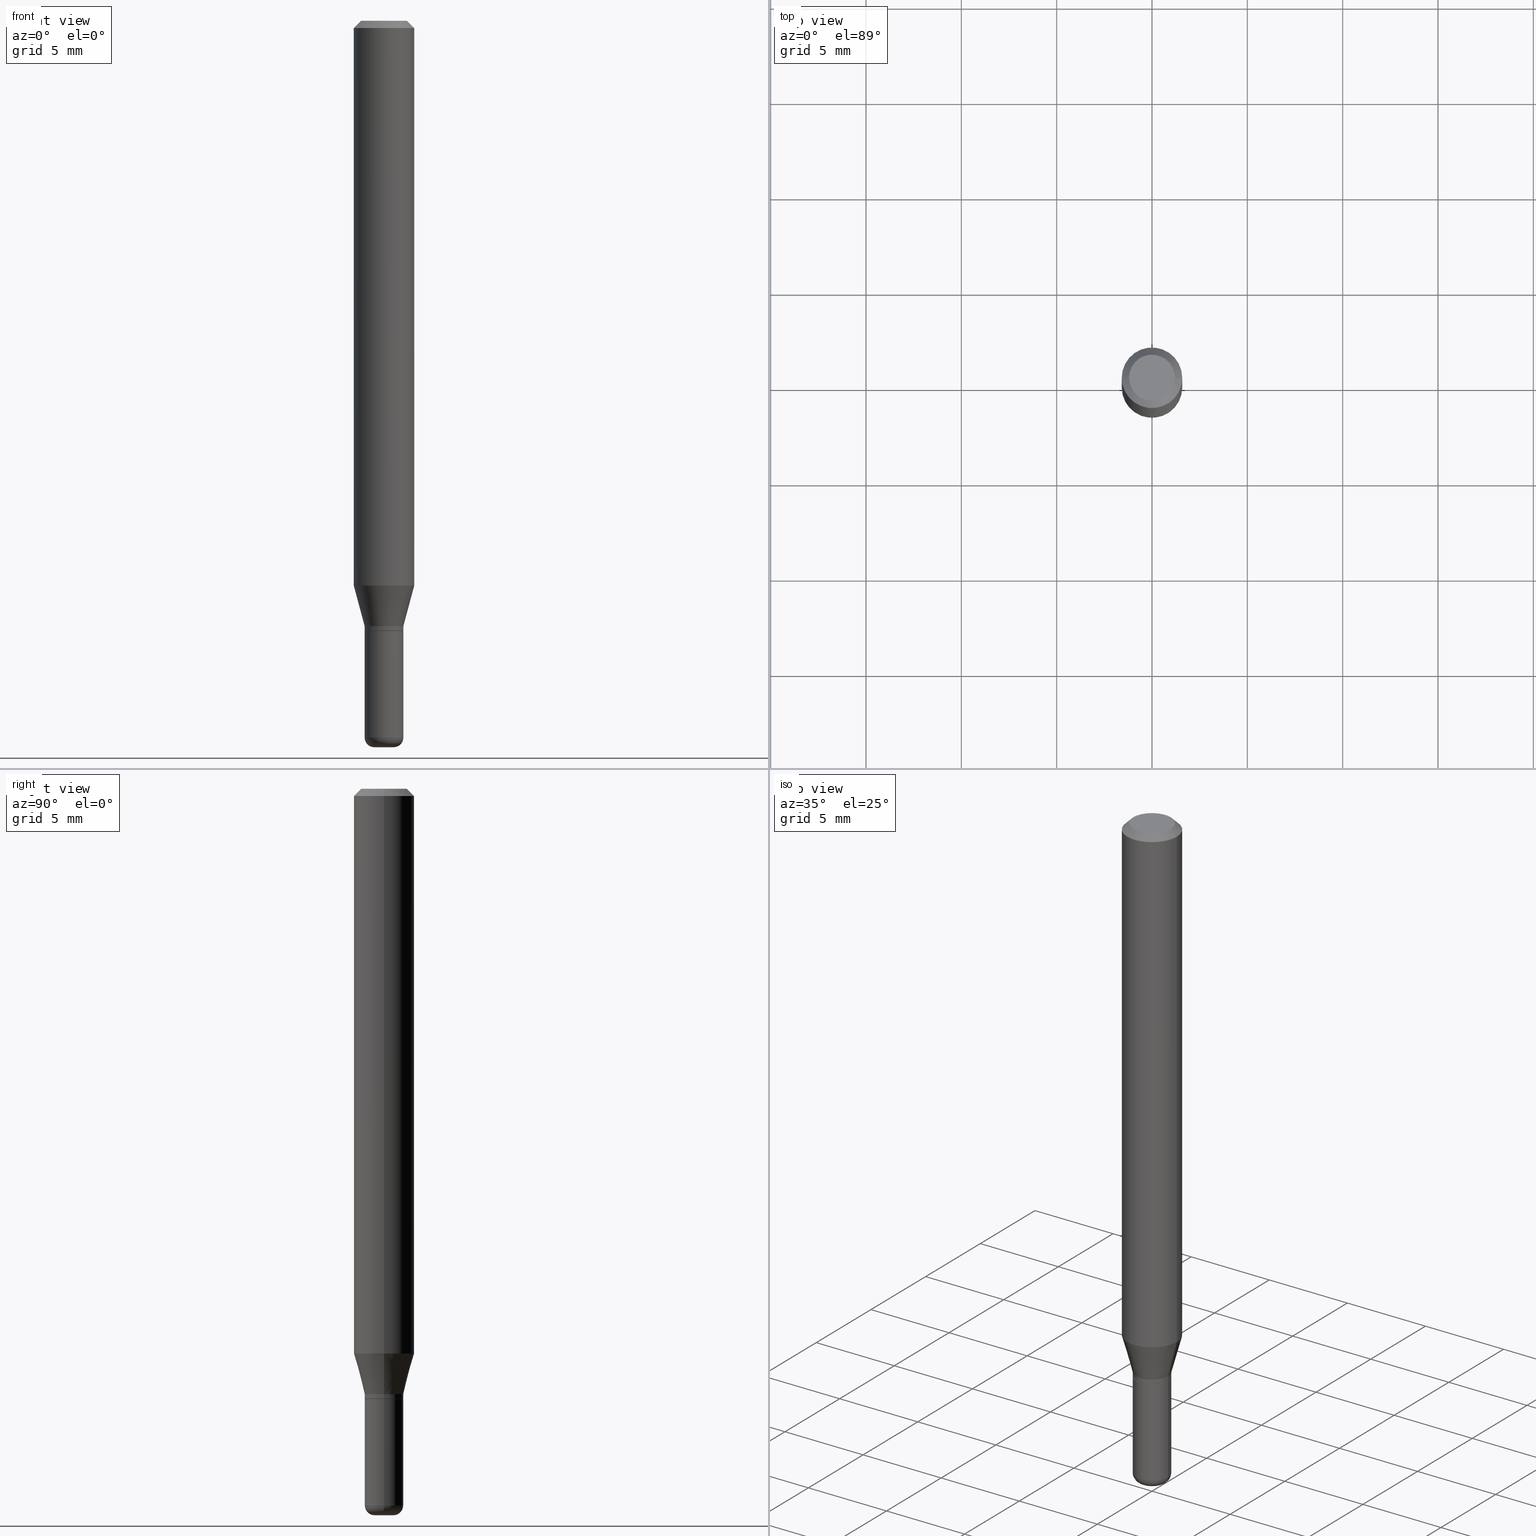
[diagram: canonical four-view strip — front | top / right | iso, engineering-drawing reading convention]
A machine part, canonical four-view strip (front | top / right | iso — engineering-drawing reading convention). The complete STEP part file that produces these views, byte-faithful:
ISO-10303-21;
HEADER;
FILE_DESCRIPTION (( 'STEP AP203' ),
    '1' );
FILE_NAME ('08707.STEP',
    '2024-02-29T20:30:15',
    ( '' ),
    ( '' ),
    'SwSTEP 2.0',
    'SolidWorks 2023',
    '' );
FILE_SCHEMA (( 'CONFIG_CONTROL_DESIGN' ));
ENDSEC;

DATA;
#1 = APPLICATION_CONTEXT ( 'configuration controlled 3d designs of mechanical parts and assemblies' ) ;
#2 = CIRCLE ( 'NONE', #28, 0.04000000000000000083 ) ;
#3 = CC_DESIGN_APPROVAL ( #384, ( #289 ) ) ;
#4 = EDGE_CURVE ( 'NONE', #104, #370, #307, .T. ) ;
#5 = ORIENTED_EDGE ( 'NONE', *, *, #271, .F. ) ;
#6 = CARTESIAN_POINT ( 'NONE',  ( -0.06250000000000000000, -1.617680897278012693E-15, -0.01499999999999970281 ) ) ;
#7 = PERSON_AND_ORGANIZATION ( #34, #426 ) ;
#8 = ORIENTED_EDGE ( 'NONE', *, *, #4, .T. ) ;
#9 = PERSON_AND_ORGANIZATION_ROLE ( 'creator' ) ;
#10 = VECTOR ( 'NONE', #398, 39.37007874015748143 ) ;
#11 = DIRECTION ( 'NONE',  ( -0.7071067811865479058, 2.468850131082261005E-15, -0.7071067811865471286 ) ) ;
#12 = ORIENTED_EDGE ( 'NONE', *, *, #191, .F. ) ;
#13 = CC_DESIGN_DATE_AND_TIME_ASSIGNMENT ( #488, #283, ( #122 ) ) ;
#14 = EDGE_LOOP ( 'NONE', ( #12, #440, #274, #5 ) ) ;
#15 = DIRECTION ( 'NONE',  ( 1.000000000000000000, -6.982962677686266711E-15, 0.000000000000000000 ) ) ;
#16 = CARTESIAN_POINT ( 'NONE',  ( -0.04000000000000000083, -4.080134579249892145E-15, -1.250000000000000000 ) ) ;
#17 = AXIS2_PLACEMENT_3D ( 'NONE', #268, #130, #48 ) ;
#18 = CARTESIAN_POINT ( 'NONE',  ( 0.000000000000000000, 0.000000000000000000, 0.000000000000000000 ) ) ;
#19 = CONICAL_SURFACE ( 'NONE', #54, 0.03950000000000001427, 0.7853981633972775267 ) ;
#20 = DIRECTION ( 'NONE',  ( 1.000000000000000000, -6.982962677686266711E-15, 4.852736867747365086E-29 ) ) ;
#21 = EDGE_CURVE ( 'NONE', #334, #171, #448, .T. ) ;
#22 = CARTESIAN_POINT ( 'NONE',  ( 0.000000000000000000, 0.000000000000000000, 0.000000000000000000 ) ) ;
#23 = ORIENTED_EDGE ( 'NONE', *, *, #503, .T. ) ;
#24 = DIRECTION ( 'NONE',  ( 1.000000000000000000, -6.982962677686257244E-15, 0.000000000000000000 ) ) ;
#25 = DIRECTION ( 'NONE',  ( 1.000000000000000000, -6.982962677686271444E-15, 0.000000000000000000 ) ) ;
#26 = ORIENTED_EDGE ( 'NONE', *, *, #212, .F. ) ;
#27 = CARTESIAN_POINT ( 'NONE',  ( 3.080067961390179490E-29, -4.397520746272941828E-15, -1.259500000000000064 ) ) ;
#28 = AXIS2_PLACEMENT_3D ( 'NONE', #121, #267, #455 ) ;
#29 = AXIS2_PLACEMENT_3D ( 'NONE', #456, #290, #20 ) ;
#30 = DIRECTION ( 'NONE',  ( 1.000000000000000000, -6.982962677686272233E-15, 0.000000000000000000 ) ) ;
#31 = PERSON_AND_ORGANIZATION_ROLE ( 'creator' ) ;
#32 = EDGE_LOOP ( 'NONE', ( #278, #195, #351, #203 ) ) ;
#33 = VECTOR ( 'NONE', #288, 39.37007874015748143 ) ;
#34 = PERSON ( 'UNSPECIFIED', 'UNSPECIFIED', 'UNSPECIFIED', ('UNSPECIFIED'), ('UNSPECIFIED'), ('UNSPECIFIED') ) ;
#35 = CIRCLE ( 'NONE', #146, 0.04000000000000003553 ) ;
#36 = CC_DESIGN_PERSON_AND_ORGANIZATION_ASSIGNMENT ( #362, #9, ( #122 ) ) ;
#37 = CARTESIAN_POINT ( 'NONE',  ( 0.000000000000000000, 0.000000000000000000, 0.000000000000000000 ) ) ;
#38 = CARTESIAN_POINT ( 'NONE',  ( 3.619293833154002365E-29, -5.167392381487854879E-15, -1.479999999999999982 ) ) ;
#39 = ORIENTED_EDGE ( 'NONE', *, *, #305, .F. ) ;
#40 = DIRECTION ( 'NONE',  ( 7.105427357601001859E-15, 1.000000000000000000, -3.491481338843145583E-15 ) ) ;
#41 = DIRECTION ( 'NONE',  ( -2.445468806185136877E-29, 3.491481338843145188E-15, 1.000000000000000000 ) ) ;
#42 = ADVANCED_FACE ( 'NONE', ( #324 ), #326, .T. ) ;
#43 = CIRCLE ( 'NONE', #458, 0.04000000000000003553 ) ;
#44 = LOCAL_TIME ( 15, 30, 15.00000000000000000, #85 ) ;
#45 = DIRECTION ( 'NONE',  ( 2.445468806185136597E-29, -3.491481338843145583E-15, -1.000000000000000000 ) ) ;
#46 = ORIENTED_EDGE ( 'NONE', *, *, #198, .T. ) ;
#47 = DIRECTION ( 'NONE',  ( 1.000000000000000000, -6.982962677686282488E-15, 0.000000000000000000 ) ) ;
#48 = DIRECTION ( 'NONE',  ( 1.000000000000000000, -6.982962677686269077E-15, 0.000000000000000000 ) ) ;
#49 = ORIENTED_EDGE ( 'NONE', *, *, #56, .F. ) ;
#50 = APPROVAL_DATE_TIME ( #163, #152 ) ;
#51 = COORDINATED_UNIVERSAL_TIME_OFFSET ( 5, 0, .BEHIND. ) ;
#52 = DIRECTION ( 'NONE',  ( 1.000000000000000000, -6.982962677686278543E-15, 4.883557194083116264E-29 ) ) ;
#53 = CIRCLE ( 'NONE', #393, 0.06250000000000000000 ) ;
#54 = AXIS2_PLACEMENT_3D ( 'NONE', #118, #112, #417 ) ;
#55 = DESIGN_CONTEXT ( 'detailed design', #1, 'design' ) ;
#56 = EDGE_CURVE ( 'NONE', #86, #63, #164, .T. ) ;
#57 = CARTESIAN_POINT ( 'NONE',  ( 0.06250000000000000000, -4.507603161528897181E-15, -1.166028856829700366 ) ) ;
#58 = CARTESIAN_POINT ( 'NONE',  ( 0.000000000000000000, 0.000000000000000000, 0.000000000000000000 ) ) ;
#59 = COORDINATED_UNIVERSAL_TIME_OFFSET ( 5, 0, .BEHIND. ) ;
#60 = ORIENTED_EDGE ( 'NONE', *, *, #221, .T. ) ;
#61 = DIRECTION ( 'NONE',  ( 1.000000000000000000, -6.982962677686271444E-15, 0.000000000000000000 ) ) ;
#62 = FACE_OUTER_BOUND ( 'NONE', #14, .T. ) ;
#63 = VERTEX_POINT ( 'NONE', #429 ) ;
#64 = LINE ( 'NONE', #150, #67 ) ;
#65 = CARTESIAN_POINT ( 'NONE',  ( 0.03950000000000001427, -4.675093512710971939E-15, -1.260000000000000231 ) ) ;
#66 = CLOSED_SHELL ( 'NONE', ( #42, #179, #427, #250, #518, #149 ) ) ;
#67 = VECTOR ( 'NONE', #264, 39.37007874015748143 ) ;
#68 = DIRECTION ( 'NONE',  ( -2.445468806185136597E-29, 3.491481338843145583E-15, 1.000000000000000000 ) ) ;
#69 = EDGE_LOOP ( 'NONE', ( #327, #459 ) ) ;
#70 = DIRECTION ( 'NONE',  ( -2.445468806185136597E-29, 3.491481338843145583E-15, 1.000000000000000000 ) ) ;
#71 = DIRECTION ( 'NONE',  ( 1.000000000000000000, 0.000000000000000000, 0.000000000000000000 ) ) ;
#72 = CARTESIAN_POINT ( 'NONE',  ( 2.793185071074814439E-16, 0.03999999999999560157, -1.260000000000000453 ) ) ;
#73 = ADVANCED_BREP_SHAPE_REPRESENTATION ( '08707', ( #423, #236, #270 ), #403 ) ;
#74 = FACE_OUTER_BOUND ( 'NONE', #253, .T. ) ;
#75 = AXIS2_PLACEMENT_3D ( 'NONE', #385, #373, #30 ) ;
#76 = CIRCLE ( 'NONE', #349, 0.02000000000000000389 ) ;
#77 = ORIENTED_EDGE ( 'NONE', *, *, #331, .T. ) ;
#78 = ADVANCED_FACE ( 'NONE', ( #155 ), #92, .T. ) ;
#79 = DIRECTION ( 'NONE',  ( -2.445468806185136597E-29, 3.491481338843145583E-15, 1.000000000000000000 ) ) ;
#80 = AXIS2_PLACEMENT_3D ( 'NONE', #72, #325, #298 ) ;
#81 = CIRCLE ( 'NONE', #29, 0.04750000000000000749 ) ;
#82 = DIRECTION ( 'NONE',  ( 1.000000000000000000, -6.982962677686278543E-15, 4.883557194083116264E-29 ) ) ;
#83 = ORIENTED_EDGE ( 'NONE', *, *, #21, .F. ) ;
#84 = APPLICATION_PROTOCOL_DEFINITION ( 'international standard', 'config_control_design', 1994, #1 ) ;
#85 = COORDINATED_UNIVERSAL_TIME_OFFSET ( 5, 0, .BEHIND. ) ;
#86 = VERTEX_POINT ( 'NONE', #193 ) ;
#87 = COORDINATED_UNIVERSAL_TIME_OFFSET ( 5, 0, .BEHIND. ) ;
#88 = CARTESIAN_POINT ( 'NONE',  ( 3.668203209277632395E-31, -5.237222008264614861E-17, -0.01499999999999970281 ) ) ;
#89 = EDGE_LOOP ( 'NONE', ( #320, #166, #432, #49 ) ) ;
#90 = ADVANCED_FACE ( 'NONE', ( #312 ), #391, .F. ) ;
#91 =( CONVERSION_BASED_UNIT ( 'INCH', #284 ) LENGTH_UNIT ( ) NAMED_UNIT ( #505 ) );
#92 = CONICAL_SURFACE ( 'NONE', #151, 0.06250000000000000000, 0.7853981633974488341 ) ;
#93 = EDGE_LOOP ( 'NONE', ( #8, #322, #132, #486 ) ) ;
#94 = VECTOR ( 'NONE', #256, 39.37007874015748143 ) ;
#95 = TOROIDAL_SURFACE ( 'NONE', #365, 0.02000000000000000042, 0.02000000000000003164 ) ;
#96 =( NAMED_UNIT ( * ) PLANE_ANGLE_UNIT ( ) SI_UNIT ( $, .RADIAN. ) );
#97 = CARTESIAN_POINT ( 'NONE',  ( 3.081290695793272291E-29, -4.399266486942364120E-15, -1.260000000000000231 ) ) ;
#98 = ORIENTED_EDGE ( 'NONE', *, *, #350, .F. ) ;
#99 = EDGE_CURVE ( 'NONE', #181, #497, #35, .T. ) ;
#100 = LINE ( 'NONE', #235, #484 ) ;
#101 = ORIENTED_EDGE ( 'NONE', *, *, #422, .F. ) ;
#102 = CARTESIAN_POINT ( 'NONE',  ( -0.04000000000000001471, -4.113303651968902290E-15, -1.259500000000000064 ) ) ;
#103 = DIRECTION ( 'NONE',  ( -2.445468806185136597E-29, 3.491481338843145583E-15, 1.000000000000000000 ) ) ;
#104 = VERTEX_POINT ( 'NONE', #272 ) ;
#105 = APPROVAL_DATE_TIME ( #142, #474 ) ;
#106 = AXIS2_PLACEMENT_3D ( 'NONE', #97, #184, #507 ) ;
#107 = CYLINDRICAL_SURFACE ( 'NONE', #170, 0.06250000000000000000 ) ;
#108 = ORIENTED_EDGE ( 'NONE', *, *, #191, .T. ) ;
#109 = CARTESIAN_POINT ( 'NONE',  ( 3.081290695793272291E-29, -4.399266486942364120E-15, -1.260000000000000231 ) ) ;
#110 = CARTESIAN_POINT ( 'NONE',  ( 0.06250000000000000000, -4.364351673553916694E-16, 3.047610484872459871E-30 ) ) ;
#111 = CARTESIAN_POINT ( 'NONE',  ( 2.851487196488747125E-29, -4.071167994173504722E-15, -1.166028856829700366 ) ) ;
#112 = DIRECTION ( 'NONE',  ( -2.445468806185136597E-29, 3.491481338843145583E-15, 1.000000000000000000 ) ) ;
#113 = CARTESIAN_POINT ( 'NONE',  ( -0.04000000000000001471, 2.842170943040401789E-16, -1.967574036101963210E-30 ) ) ;
#114 = CALENDAR_DATE ( 2024, 29, 2 ) ;
#115 = CARTESIAN_POINT ( 'NONE',  ( 0.000000000000000000, 0.000000000000000000, 0.000000000000000000 ) ) ;
#116 = FACE_OUTER_BOUND ( 'NONE', #280, .T. ) ;
#117 = CARTESIAN_POINT ( 'NONE',  ( 3.056836007731421306E-29, -4.364351673553932471E-15, -1.250000000000000000 ) ) ;
#118 = CARTESIAN_POINT ( 'NONE',  ( 3.081290695793272291E-29, -4.399266486942364120E-15, -1.260000000000000231 ) ) ;
#119 = DIRECTION ( 'NONE',  ( 1.000000000000000000, -6.982962677686277755E-15, 0.000000000000000000 ) ) ;
#120 = ORIENTED_EDGE ( 'NONE', *, *, #21, .T. ) ;
#121 = CARTESIAN_POINT ( 'NONE',  ( 3.081290695793272291E-29, -4.399266486942364120E-15, -1.260000000000000231 ) ) ;
#122 = PRODUCT_DEFINITION ( 'UNKNOWN', '', #386, #55 ) ;
#123 = AXIS2_PLACEMENT_3D ( 'NONE', #517, #40, #476 ) ;
#124 = DIRECTION ( 'NONE',  ( -2.445468806185136597E-29, 3.491481338843145583E-15, 1.000000000000000000 ) ) ;
#125 = EDGE_CURVE ( 'NONE', #370, #181, #475, .T. ) ;
#126 = FACE_OUTER_BOUND ( 'NONE', #394, .T. ) ;
#127 = CONICAL_SURFACE ( 'NONE', #279, 0.04000000000000000083, 0.2617993877991495189 ) ;
#128 = LOCAL_TIME ( 15, 30, 15.00000000000000000, #244 ) ;
#129 = PLANE ( 'NONE',  #247 ) ;
#130 = DIRECTION ( 'NONE',  ( -2.445468806185136597E-29, 3.491481338843145583E-15, 1.000000000000000000 ) ) ;
#131 = CC_DESIGN_DATE_AND_TIME_ASSIGNMENT ( #377, #202, ( #289 ) ) ;
#132 = ORIENTED_EDGE ( 'NONE', *, *, #154, .F. ) ;
#133 = DIRECTION ( 'NONE',  ( 1.000000000000000000, -6.982962677686266711E-15, 4.876176775795936914E-29 ) ) ;
#134 = AXIS2_PLACEMENT_3D ( 'NONE', #115, #214, #147 ) ;
#135 = CIRCLE ( 'NONE', #106, 0.03950000000000001427 ) ;
#136 = ORIENTED_EDGE ( 'NONE', *, *, #4, .F. ) ;
#137 = DIRECTION ( 'NONE',  ( -2.445468806185136597E-29, 3.491481338843145583E-15, 1.000000000000000000 ) ) ;
#138 = APPROVAL_ROLE ( '' ) ;
#139 = ADVANCED_FACE ( 'NONE', ( #228 ), #389, .T. ) ;
#140 = UNCERTAINTY_MEASURE_WITH_UNIT (LENGTH_MEASURE( 1.000000000000000082E-05 ), #91, 'distance_accuracy_value', 'NONE');
#141 = ORIENTED_EDGE ( 'NONE', *, *, #396, .T. ) ;
#142 = DATE_AND_TIME ( #233, #44 ) ;
#143 = DIRECTION ( 'NONE',  ( 1.000000000000000000, -6.982962677686265922E-15, 4.876176775795935793E-29 ) ) ;
#144 = CARTESIAN_POINT ( 'NONE',  ( -0.03950000000000001427, -4.118602106317124692E-15, -1.260000000000000231 ) ) ;
#145 = CARTESIAN_POINT ( 'NONE',  ( 3.056836007731421306E-29, -4.364351673553932471E-15, -1.250000000000000000 ) ) ;
#146 = AXIS2_PLACEMENT_3D ( 'NONE', #38, #124, #471 ) ;
#147 = DIRECTION ( 'NONE',  ( 1.000000000000000000, -6.982962677686266711E-15, 4.876176775795936914E-29 ) ) ;
#148 = DIRECTION ( 'NONE',  ( -2.445468806185136597E-29, 3.491481338843145583E-15, 1.000000000000000000 ) ) ;
#149 = ADVANCED_FACE ( 'NONE', ( #126 ), #129, .F. ) ;
#150 = CARTESIAN_POINT ( 'NONE',  ( 0.06250000000000000000, -4.811533449433669144E-16, -0.01499999999999970281 ) ) ;
#151 = AXIS2_PLACEMENT_3D ( 'NONE', #88, #45, #319 ) ;
#152 = APPROVAL ( #328, 'UNSPECIFIED' ) ;
#153 = SECURITY_CLASSIFICATION_LEVEL ( 'unclassified' ) ;
#154 = EDGE_CURVE ( 'NONE', #497, #181, #43, .T. ) ;
#155 = FACE_OUTER_BOUND ( 'NONE', #176, .T. ) ;
#156 = CC_DESIGN_SECURITY_CLASSIFICATION ( #289, ( #386 ) ) ;
#157 = DIRECTION ( 'NONE',  ( -2.445468806185136877E-29, 3.491481338843145188E-15, 1.000000000000000000 ) ) ;
#158 = CARTESIAN_POINT ( 'NONE',  ( 3.316907271900976589E-16, 0.04750000000000000749, -2.925296391183627249E-17 ) ) ;
#159 = CARTESIAN_POINT ( 'NONE',  ( 3.619293833154002365E-29, -5.167392381487854879E-15, -1.479999999999999982 ) ) ;
#160 = AXIS2_PLACEMENT_3D ( 'NONE', #37, #314, #472 ) ;
#161 = APPROVAL_PERSON_ORGANIZATION ( #442, #474, #433 ) ;
#162 = PRODUCT_RELATED_PRODUCT_CATEGORY ( 'detail', '', ( #339 ) ) ;
#163 = DATE_AND_TIME ( #330, #128 ) ;
#164 = LINE ( 'NONE', #199, #457 ) ;
#165 = VERTEX_POINT ( 'NONE', #418 ) ;
#166 = ORIENTED_EDGE ( 'NONE', *, *, #422, .T. ) ;
#167 = ADVANCED_FACE ( 'NONE', ( #382 ), #428, .F. ) ;
#168 = LINE ( 'NONE', #453, #415 ) ;
#169 = AXIS2_PLACEMENT_3D ( 'NONE', #159, #79, #82 ) ;
#170 = AXIS2_PLACEMENT_3D ( 'NONE', #22, #292, #300 ) ;
#171 = VERTEX_POINT ( 'NONE', #102 ) ;
#172 = APPROVAL_PERSON_ORGANIZATION ( #483, #152, #138 ) ;
#173 = LINE ( 'NONE', #113, #94 ) ;
#174 = ORIENTED_EDGE ( 'NONE', *, *, #212, .T. ) ;
#175 = DIRECTION ( 'NONE',  ( -2.445468806185136877E-29, 3.491481338843145188E-15, 1.000000000000000000 ) ) ;
#176 = EDGE_LOOP ( 'NONE', ( #209, #480, #23, #98 ) ) ;
#177 = DIRECTION ( 'NONE',  ( -0.2588190451025207950, 5.211531920934546309E-15, 0.9659258262890682012 ) ) ;
#178 = ORIENTED_EDGE ( 'NONE', *, *, #311, .T. ) ;
#179 = ADVANCED_FACE ( 'NONE', ( #359 ), #401, .T. ) ;
#180 = CARTESIAN_POINT ( 'NONE',  ( 3.081290695793272291E-29, -4.399266486942364120E-15, -1.260000000000000231 ) ) ;
#181 = VERTEX_POINT ( 'NONE', #407 ) ;
#182 = DIRECTION ( 'NONE',  ( -2.445468806185136597E-29, 3.491481338843145583E-15, 1.000000000000000000 ) ) ;
#183 = CARTESIAN_POINT ( 'NONE',  ( 3.668203209277632395E-31, -5.237222008264614861E-17, -0.01499999999999970281 ) ) ;
#184 = DIRECTION ( 'NONE',  ( -2.445468806185136597E-29, 3.491481338843145583E-15, 1.000000000000000000 ) ) ;
#185 = DIRECTION ( 'NONE',  ( 1.000000000000000000, -6.982962677686262766E-15, 0.000000000000000000 ) ) ;
#186 = AXIS2_PLACEMENT_3D ( 'NONE', #27, #70, #24 ) ;
#187 = CIRCLE ( 'NONE', #275, 0.04000000000000000083 ) ;
#188 = CARTESIAN_POINT ( 'NONE',  ( -0.04000000000000000083, -3.853606681786667125E-15, -1.250000000000000000 ) ) ;
#189 = PERSON_AND_ORGANIZATION ( #34, #426 ) ;
#190 = EDGE_LOOP ( 'NONE', ( #276, #490, #77, #243 ) ) ;
#191 = EDGE_CURVE ( 'NONE', #294, #405, #211, .T. ) ;
#192 = CIRCLE ( 'NONE', #186, 0.04000000000000001471 ) ;
#193 = CARTESIAN_POINT ( 'NONE',  ( 0.04000000000000001471, -4.676839253380393443E-15, -1.259500000000000064 ) ) ;
#194 = CARTESIAN_POINT ( 'NONE',  ( 3.582686580359766038E-29, -5.359686688179453325E-15, -1.500000000000000222 ) ) ;
#195 = ORIENTED_EDGE ( 'NONE', *, *, #354, .T. ) ;
#196 = VECTOR ( 'NONE', #411, 39.37007874015748854 ) ;
#197 = CARTESIAN_POINT ( 'NONE',  ( -0.03950000000000001427, -4.115952879143013491E-15, -1.260000000000000231 ) ) ;
#198 = EDGE_CURVE ( 'NONE', #165, #479, #436, .T. ) ;
#199 = CARTESIAN_POINT ( 'NONE',  ( 0.04000000000000000777, -2.793185071074507276E-16, 1.950470710318374738E-30 ) ) ;
#200 = CC_DESIGN_PERSON_AND_ORGANIZATION_ASSIGNMENT ( #464, #31, ( #386 ) ) ;
#201 = CARTESIAN_POINT ( 'NONE',  ( -6.680649051745406845E-45, 9.538196290434862081E-31, 2.731847993664263218E-16 ) ) ;
#202 = DATE_TIME_ROLE ( 'classification_date' ) ;
#203 = ORIENTED_EDGE ( 'NONE', *, *, #331, .F. ) ;
#204 = AXIS2_PLACEMENT_3D ( 'NONE', #111, #379, #223 ) ;
#205 = CALENDAR_DATE ( 2024, 29, 2 ) ;
#206 = EDGE_LOOP ( 'NONE', ( #178, #439, #315, #366 ) ) ;
#207 = CC_DESIGN_APPROVAL ( #474, ( #386 ) ) ;
#208 = CARTESIAN_POINT ( 'NONE',  ( -0.02000000000000000389, -4.989144374148256283E-15, -1.500000000000000222 ) ) ;
#209 = ORIENTED_EDGE ( 'NONE', *, *, #345, .F. ) ;
#210 = DIRECTION ( 'NONE',  ( -2.445468806185136597E-29, 3.491481338843145583E-15, 1.000000000000000000 ) ) ;
#211 = LINE ( 'NONE', #16, #225 ) ;
#212 = EDGE_CURVE ( 'NONE', #171, #86, #469, .T. ) ;
#213 = VERTEX_POINT ( 'NONE', #6 ) ;
#214 = DIRECTION ( 'NONE',  ( -2.445468806185136597E-29, 3.491481338843145583E-15, 1.000000000000000000 ) ) ;
#215 = CYLINDRICAL_SURFACE ( 'NONE', #302, 0.06250000000000000000 ) ;
#216 = AXIS2_PLACEMENT_3D ( 'NONE', #201, #360, #482 ) ;
#217 = ADVANCED_FACE ( 'NONE', ( #335 ), #352, .T. ) ;
#218 = DIRECTION ( 'NONE',  ( 1.000000000000000000, -6.982962677686265922E-15, 4.876176775795935793E-29 ) ) ;
#219 = DIRECTION ( 'NONE',  ( -2.445468806185136597E-29, 3.491481338843145583E-15, 1.000000000000000000 ) ) ;
#220 = CARTESIAN_POINT ( 'NONE',  ( 0.04000000000000003553, -5.446710888595306494E-15, -1.479999999999999982 ) ) ;
#221 = EDGE_CURVE ( 'NONE', #63, #294, #376, .T. ) ;
#222 = DIRECTION ( 'NONE',  ( -2.445468806185136877E-29, 3.491481338843145188E-15, 1.000000000000000000 ) ) ;
#223 = DIRECTION ( 'NONE',  ( 1.000000000000000000, -6.982962677686262766E-15, 0.000000000000000000 ) ) ;
#224 = FACE_OUTER_BOUND ( 'NONE', #190, .T. ) ;
#225 = VECTOR ( 'NONE', #177, 39.37007874015748854 ) ;
#226 = LOCAL_TIME ( 15, 30, 15.00000000000000000, #51 ) ;
#227 = EDGE_CURVE ( 'NONE', #86, #171, #192, .T. ) ;
#228 = FACE_OUTER_BOUND ( 'NONE', #89, .T. ) ;
#229 = AXIS2_PLACEMENT_3D ( 'NONE', #449, #258, #254 ) ;
#230 = ADVANCED_FACE ( 'NONE', ( #344 ), #445, .T. ) ;
#231 = DIRECTION ( 'NONE',  ( 2.438088387897960049E-29, -3.491481338843145188E-15, -1.000000000000000000 ) ) ;
#232 = ORIENTED_EDGE ( 'NONE', *, *, #271, .T. ) ;
#233 = CALENDAR_DATE ( 2024, 29, 2 ) ;
#234 = ORIENTED_EDGE ( 'NONE', *, *, #311, .F. ) ;
#235 = CARTESIAN_POINT ( 'NONE',  ( 0.04000000000000001471, -2.793185071074507769E-16, 1.950470710318375438E-30 ) ) ;
#236 = MANIFOLD_SOLID_BREP ( 'Body-Move/Copy2[2]', #237 ) ;
#237 = CLOSED_SHELL ( 'NONE', ( #139, #481, #78, #388, #230, #357, #392, #217, #90, #167, #318, #313 ) ) ;
#238 = CIRCLE ( 'NONE', #204, 0.06250000000000000000 ) ;
#239 = EDGE_CURVE ( 'NONE', #479, #165, #2, .T. ) ;
#240 = AXIS2_PLACEMENT_3D ( 'NONE', #183, #341, #255 ) ;
#241 = ORIENTED_EDGE ( 'NONE', *, *, #260, .T. ) ;
#242 = DIRECTION ( 'NONE',  ( 1.000000000000000000, -6.982962677686257244E-15, 0.000000000000000000 ) ) ;
#243 = ORIENTED_EDGE ( 'NONE', *, *, #198, .F. ) ;
#244 = COORDINATED_UNIVERSAL_TIME_OFFSET ( 5, 0, .BEHIND. ) ;
#245 = LINE ( 'NONE', #110, #10 ) ;
#246 = APPROVAL_STATUS ( 'not_yet_approved' ) ;
#247 = AXIS2_PLACEMENT_3D ( 'NONE', #194, #367, #218 ) ;
#248 = EDGE_LOOP ( 'NONE', ( #342, #390, #241, #410 ) ) ;
#249 = CIRCLE ( 'NONE', #240, 0.06250000000000000000 ) ;
#250 = ADVANCED_FACE ( 'NONE', ( #224 ), #381, .T. ) ;
#251 = PERSON_AND_ORGANIZATION_ROLE ( 'design_owner' ) ;
#252 = CARTESIAN_POINT ( 'NONE',  ( -0.06250000000000000000, -3.627078784323442106E-15, -1.166028856829700366 ) ) ;
#253 = EDGE_LOOP ( 'NONE', ( #83, #441, #409, #26 ) ) ;
#254 = DIRECTION ( 'NONE',  ( -1.000000000000000000, 6.982962677686266711E-15, 0.000000000000000000 ) ) ;
#255 = DIRECTION ( 'NONE',  ( 1.000000000000000000, -6.982962677686266711E-15, 0.000000000000000000 ) ) ;
#256 = DIRECTION ( 'NONE',  ( -2.445468806185136877E-29, 3.491481338843145188E-15, 1.000000000000000000 ) ) ;
#257 = ORIENTED_EDGE ( 'NONE', *, *, #273, .F. ) ;
#258 = DIRECTION ( 'NONE',  ( 2.445468806185136597E-29, -3.491481338843145583E-15, -1.000000000000000000 ) ) ;
#259 = CARTESIAN_POINT ( 'NONE',  ( 0.04750000000000000749, -4.035134999187568762E-16, 2.731847993664288856E-16 ) ) ;
#260 = EDGE_CURVE ( 'NONE', #104, #497, #316, .T. ) ;
#261 = AXIS2_PLACEMENT_3D ( 'NONE', #58, #137, #133 ) ;
#262 = DIRECTION ( 'NONE',  ( 1.000000000000000000, -6.982962677686269077E-15, 0.000000000000000000 ) ) ;
#263 = LOCAL_TIME ( 15, 30, 15.00000000000000000, #87 ) ;
#264 = DIRECTION ( 'NONE',  ( 0.7071067811865479058, -7.319954787623257623E-15, -0.7071067811865471286 ) ) ;
#265 = DIRECTION ( 'NONE',  ( -2.445468806185136597E-29, 3.491481338843145583E-15, 1.000000000000000000 ) ) ;
#266 = EDGE_LOOP ( 'NONE', ( #435, #120, #301, #257 ) ) ;
#267 = DIRECTION ( 'NONE',  ( -2.445468806185136597E-29, 3.491481338843145583E-15, 1.000000000000000000 ) ) ;
#268 = CARTESIAN_POINT ( 'NONE',  ( 3.081290695793272291E-29, -4.399266486942364120E-15, -1.260000000000000231 ) ) ;
#269 = AXIS2_PLACEMENT_3D ( 'NONE', #495, #291, #450 ) ;
#270 = AXIS2_PLACEMENT_3D ( 'NONE', #465, #419, #71 ) ;
#271 = EDGE_CURVE ( 'NONE', #405, #361, #238, .T. ) ;
#272 = CARTESIAN_POINT ( 'NONE',  ( 0.02000000000000000389, -5.376881261818443984E-15, -1.500000000000000222 ) ) ;
#273 = EDGE_CURVE ( 'NONE', #473, #86, #498, .T. ) ;
#274 = ORIENTED_EDGE ( 'NONE', *, *, #304, .T. ) ;
#275 = AXIS2_PLACEMENT_3D ( 'NONE', #145, #148, #25 ) ;
#276 = ORIENTED_EDGE ( 'NONE', *, *, #354, .F. ) ;
#277 = ORIENTED_EDGE ( 'NONE', *, *, #438, .F. ) ;
#278 = ORIENTED_EDGE ( 'NONE', *, *, #154, .T. ) ;
#279 = AXIS2_PLACEMENT_3D ( 'NONE', #371, #103, #414 ) ;
#280 = EDGE_LOOP ( 'NONE', ( #487, #46 ) ) ;
#281 = APPROVAL_STATUS ( 'not_yet_approved' ) ;
#282 = ORIENTED_EDGE ( 'NONE', *, *, #454, .F. ) ;
#283 = DATE_TIME_ROLE ( 'creation_date' ) ;
#284 = LENGTH_MEASURE_WITH_UNIT ( LENGTH_MEASURE( 0.02539999999999999897 ), #374 );
#285 = VERTEX_POINT ( 'NONE', #460 ) ;
#286 = PERSON_AND_ORGANIZATION ( #34, #426 ) ;
#287 = AXIS2_PLACEMENT_3D ( 'NONE', #117, #512, #61 ) ;
#288 = DIRECTION ( 'NONE',  ( -0.7071067811864267805, 7.493145998869918709E-15, 0.7071067811866682540 ) ) ;
#289 = SECURITY_CLASSIFICATION ( '', '', #153 ) ;
#290 = DIRECTION ( 'NONE',  ( -2.445468806185136597E-29, 3.491481338843145583E-15, 1.000000000000000000 ) ) ;
#291 = DIRECTION ( 'NONE',  ( -2.445468806185136597E-29, 3.491481338843145583E-15, 1.000000000000000000 ) ) ;
#292 = DIRECTION ( 'NONE',  ( -2.445468806185136597E-29, 3.491481338843145583E-15, 1.000000000000000000 ) ) ;
#293 = APPROVAL_ROLE ( '' ) ;
#294 = VERTEX_POINT ( 'NONE', #188 ) ;
#295 = DIRECTION ( 'NONE',  ( 0.7071067811864267805, -2.468850131080992517E-15, 0.7071067811866682540 ) ) ;
#296 = CC_DESIGN_PERSON_AND_ORGANIZATION_ASSIGNMENT ( #286, #251, ( #339 ) ) ;
#297 = EDGE_LOOP ( 'NONE', ( #60, #108, #234, #347 ) ) ;
#298 = DIRECTION ( 'NONE',  ( -1.000000000000000000, 6.982962677686265922E-15, -4.876176775795935793E-29 ) ) ;
#299 = CARTESIAN_POINT ( 'NONE',  ( -0.04750000000000000749, 3.578768372314221353E-16, 2.731847993664239060E-16 ) ) ;
#300 = DIRECTION ( 'NONE',  ( 1.000000000000000000, -6.982962677686266711E-15, 4.876176775795935793E-29 ) ) ;
#301 = ORIENTED_EDGE ( 'NONE', *, *, #227, .F. ) ;
#302 = AXIS2_PLACEMENT_3D ( 'NONE', #18, #68, #446 ) ;
#303 = EDGE_LOOP ( 'NONE', ( #101, #174, #353, #372 ) ) ;
#304 = EDGE_CURVE ( 'NONE', #63, #361, #383, .T. ) ;
#305 = EDGE_CURVE ( 'NONE', #378, #285, #64, .T. ) ;
#306 = PERSON_AND_ORGANIZATION ( #34, #426 ) ;
#307 = CIRCLE ( 'NONE', #400, 0.02000000000000000389 ) ;
#308 = CIRCLE ( 'NONE', #216, 0.04750000000000000749 ) ;
#309 = APPROVAL_PERSON_ORGANIZATION ( #7, #384, #293 ) ;
#310 = DIRECTION ( 'NONE',  ( -1.000000000000000000, 6.982962677686265922E-15, -4.876176775795935793E-29 ) ) ;
#311 = EDGE_CURVE ( 'NONE', #361, #405, #53, .T. ) ;
#312 = FACE_OUTER_BOUND ( 'NONE', #69, .T. ) ;
#313 = ADVANCED_FACE ( 'NONE', ( #338 ), #501, .T. ) ;
#314 = DIRECTION ( 'NONE',  ( -2.445468806185136597E-29, 3.491481338843145583E-15, 1.000000000000000000 ) ) ;
#315 = ORIENTED_EDGE ( 'NONE', *, *, #503, .F. ) ;
#316 = CIRCLE ( 'NONE', #75, 0.02000000000000003511 ) ;
#317 = CIRCLE ( 'NONE', #416, 0.06250000000000000000 ) ;
#318 = ADVANCED_FACE ( 'NONE', ( #74 ), #375, .T. ) ;
#319 = DIRECTION ( 'NONE',  ( -1.000000000000000000, 6.982962677686266711E-15, 0.000000000000000000 ) ) ;
#320 = ORIENTED_EDGE ( 'NONE', *, *, #227, .T. ) ;
#321 = CARTESIAN_POINT ( 'NONE',  ( 3.668203209277704895E-29, -5.237222008264718177E-15, -1.500000000000000222 ) ) ;
#322 = ORIENTED_EDGE ( 'NONE', *, *, #125, .T. ) ;
#323 = DIRECTION ( 'NONE',  ( -2.445468806185136597E-29, 3.491481338843145583E-15, 1.000000000000000000 ) ) ;
#324 = FACE_OUTER_BOUND ( 'NONE', #93, .T. ) ;
#325 = DIRECTION ( 'NONE',  ( 2.438088387897960049E-29, -3.491481338843145188E-15, -1.000000000000000000 ) ) ;
#326 = TOROIDAL_SURFACE ( 'NONE', #169, 0.02000000000000000042, 0.02000000000000003164 ) ;
#327 = ORIENTED_EDGE ( 'NONE', *, *, #491, .T. ) ;
#328 = APPROVAL_STATUS ( 'not_yet_approved' ) ;
#329 = ORIENTED_EDGE ( 'NONE', *, *, #515, .F. ) ;
#330 = CALENDAR_DATE ( 2024, 29, 2 ) ;
#331 = EDGE_CURVE ( 'NONE', #497, #479, #100, .T. ) ;
#332 = CARTESIAN_POINT ( 'NONE',  ( 3.668203209277632395E-31, -5.237222008264614861E-17, -0.01499999999999970281 ) ) ;
#333 = DIRECTION ( 'NONE',  ( -2.445468806185136597E-29, 3.491481338843145583E-15, 1.000000000000000000 ) ) ;
#334 = VERTEX_POINT ( 'NONE', #197 ) ;
#335 = FACE_OUTER_BOUND ( 'NONE', #387, .T. ) ;
#336 = DIRECTION ( 'NONE',  ( -2.445468806185136597E-29, 3.491481338843145583E-15, 1.000000000000000000 ) ) ;
#337 = ORIENTED_EDGE ( 'NONE', *, *, #350, .T. ) ;
#338 = FACE_OUTER_BOUND ( 'NONE', #303, .T. ) ;
#339 = PRODUCT ( '08707', '08707', '', ( #413 ) ) ;
#340 = CARTESIAN_POINT ( 'NONE',  ( 3.056836007731421306E-29, -4.364351673553932471E-15, -1.250000000000000000 ) ) ;
#341 = DIRECTION ( 'NONE',  ( -2.445468806185136597E-29, 3.491481338843145583E-15, 1.000000000000000000 ) ) ;
#342 = ORIENTED_EDGE ( 'NONE', *, *, #125, .F. ) ;
#343 = CARTESIAN_POINT ( 'NONE',  ( 0.000000000000000000, 0.000000000000000000, 0.000000000000000000 ) ) ;
#344 = FACE_OUTER_BOUND ( 'NONE', #297, .T. ) ;
#345 = EDGE_CURVE ( 'NONE', #378, #500, #308, .T. ) ;
#346 = PERSON_AND_ORGANIZATION_ROLE ( 'design_supplier' ) ;
#347 = ORIENTED_EDGE ( 'NONE', *, *, #304, .F. ) ;
#348 = VECTOR ( 'NONE', #222, 39.37007874015748143 ) ;
#349 = AXIS2_PLACEMENT_3D ( 'NONE', #510, #397, #47 ) ;
#350 = EDGE_CURVE ( 'NONE', #500, #213, #168, .T. ) ;
#351 = ORIENTED_EDGE ( 'NONE', *, *, #239, .F. ) ;
#352 = CONICAL_SURFACE ( 'NONE', #229, 0.06250000000000000000, 0.7853981633974488341 ) ;
#353 = ORIENTED_EDGE ( 'NONE', *, *, #56, .T. ) ;
#354 = EDGE_CURVE ( 'NONE', #181, #165, #173, .T. ) ;
#355 = CARTESIAN_POINT ( 'NONE',  ( 3.080067961390179490E-29, -4.397520746272941828E-15, -1.259500000000000064 ) ) ;
#356 = ORIENTED_EDGE ( 'NONE', *, *, #491, .F. ) ;
#357 = ADVANCED_FACE ( 'NONE', ( #62 ), #127, .T. ) ;
#358 = ORIENTED_EDGE ( 'NONE', *, *, #515, .T. ) ;
#359 = FACE_OUTER_BOUND ( 'NONE', #32, .T. ) ;
#360 = DIRECTION ( 'NONE',  ( -2.445468806185136597E-29, 3.491481338843145583E-15, 1.000000000000000000 ) ) ;
#361 = VERTEX_POINT ( 'NONE', #57 ) ;
#362 = PERSON_AND_ORGANIZATION ( #34, #426 ) ;
#363 = CC_DESIGN_PERSON_AND_ORGANIZATION_ASSIGNMENT ( #306, #468, ( #289 ) ) ;
#364 = AXIS2_PLACEMENT_3D ( 'NONE', #340, #219, #466 ) ;
#365 = AXIS2_PLACEMENT_3D ( 'NONE', #462, #265, #52 ) ;
#366 = ORIENTED_EDGE ( 'NONE', *, *, #396, .F. ) ;
#367 = DIRECTION ( 'NONE',  ( -2.438088387897960049E-29, 3.491481338843145188E-15, 1.000000000000000000 ) ) ;
#368 = DIRECTION ( 'NONE',  ( -2.438088387897960049E-29, 3.491481338843145188E-15, 1.000000000000000000 ) ) ;
#369 = FACE_OUTER_BOUND ( 'NONE', #206, .T. ) ;
#370 = VERTEX_POINT ( 'NONE', #208 ) ;
#371 = CARTESIAN_POINT ( 'NONE',  ( 3.056836007731421306E-29, -4.364351673553932471E-15, -1.250000000000000000 ) ) ;
#372 = ORIENTED_EDGE ( 'NONE', *, *, #513, .F. ) ;
#373 = DIRECTION ( 'NONE',  ( -6.982962677686266711E-15, -1.000000000000000000, 3.491481338843145583E-15 ) ) ;
#374 =( LENGTH_UNIT ( ) NAMED_UNIT ( * ) SI_UNIT ( $, .METRE. ) );
#375 = CONICAL_SURFACE ( 'NONE', #17, 0.03950000000000001427, 0.7853981633972775267 ) ;
#376 = CIRCLE ( 'NONE', #364, 0.04000000000000000083 ) ;
#377 = DATE_AND_TIME ( #114, #516 ) ;
#378 = VERTEX_POINT ( 'NONE', #259 ) ;
#379 = DIRECTION ( 'NONE',  ( -2.445468806185136597E-29, 3.491481338843145583E-15, 1.000000000000000000 ) ) ;
#380 = FACE_OUTER_BOUND ( 'NONE', #477, .T. ) ;
#381 = CYLINDRICAL_SURFACE ( 'NONE', #134, 0.04000000000000001471 ) ;
#382 = FACE_OUTER_BOUND ( 'NONE', #514, .T. ) ;
#383 = LINE ( 'NONE', #452, #196 ) ;
#384 = APPROVAL ( #281, 'UNSPECIFIED' ) ;
#385 = CARTESIAN_POINT ( 'NONE',  ( 0.02000000000000000042, -5.307051635041580686E-15, -1.479999999999999982 ) ) ;
#386 = PRODUCT_DEFINITION_FORMATION_WITH_SPECIFIED_SOURCE ( 'ANY', '', #339, .NOT_KNOWN. ) ;
#387 = EDGE_LOOP ( 'NONE', ( #39, #356, #337, #358 ) ) ;
#388 = ADVANCED_FACE ( 'NONE', ( #369 ), #215, .T. ) ;
#389 = CYLINDRICAL_SURFACE ( 'NONE', #160, 0.04000000000000000777 ) ;
#390 = ORIENTED_EDGE ( 'NONE', *, *, #434, .T. ) ;
#391 = PLANE ( 'NONE',  #430 ) ;
#392 = ADVANCED_FACE ( 'NONE', ( #380 ), #107, .T. ) ;
#393 = AXIS2_PLACEMENT_3D ( 'NONE', #421, #182, #185 ) ;
#394 = EDGE_LOOP ( 'NONE', ( #136, #478 ) ) ;
#395 =( NAMED_UNIT ( * ) SI_UNIT ( $, .STERADIAN. ) SOLID_ANGLE_UNIT ( ) );
#396 = EDGE_CURVE ( 'NONE', #361, #285, #245, .T. ) ;
#397 = DIRECTION ( 'NONE',  ( -2.445468806185136597E-29, 3.491481338843145583E-15, 1.000000000000000000 ) ) ;
#398 = DIRECTION ( 'NONE',  ( -2.445468806185136877E-29, 3.491481338843145188E-15, 1.000000000000000000 ) ) ;
#399 = ORIENTED_EDGE ( 'NONE', *, *, #494, .F. ) ;
#400 = AXIS2_PLACEMENT_3D ( 'NONE', #321, #333, #493 ) ;
#401 = CYLINDRICAL_SURFACE ( 'NONE', #261, 0.04000000000000001471 ) ;
#402 = AXIS2_PLACEMENT_3D ( 'NONE', #109, #368, #143 ) ;
#403 =( GEOMETRIC_REPRESENTATION_CONTEXT ( 3 ) GLOBAL_UNCERTAINTY_ASSIGNED_CONTEXT ( ( #140 ) ) GLOBAL_UNIT_ASSIGNED_CONTEXT ( ( #91, #96, #395 ) ) REPRESENTATION_CONTEXT ( 'NONE', 'WORKASPACE' ) );
#404 = SHAPE_DEFINITION_REPRESENTATION ( #444, #73 ) ;
#405 = VERTEX_POINT ( 'NONE', #252 ) ;
#406 = CARTESIAN_POINT ( 'NONE',  ( -0.06250000000000000000, 4.440892098500626162E-16, -3.074334431409316114E-30 ) ) ;
#407 = CARTESIAN_POINT ( 'NONE',  ( -0.04000000000000003553, -4.499112339911069567E-15, -1.479999999999999982 ) ) ;
#408 = LINE ( 'NONE', #451, #348 ) ;
#409 = ORIENTED_EDGE ( 'NONE', *, *, #273, .T. ) ;
#410 = ORIENTED_EDGE ( 'NONE', *, *, #99, .F. ) ;
#411 = DIRECTION ( 'NONE',  ( 0.2588190451025207950, 1.565188264969625912E-15, 0.9659258262890682012 ) ) ;
#412 = APPLICATION_CONTEXT ( 'configuration controlled 3d designs of mechanical parts and assemblies' ) ;
#413 = MECHANICAL_CONTEXT ( 'NONE', #412, 'mechanical' ) ;
#414 = DIRECTION ( 'NONE',  ( 1.000000000000000000, -6.982962677686271444E-15, 0.000000000000000000 ) ) ;
#415 = VECTOR ( 'NONE', #11, 39.37007874015748143 ) ;
#416 = AXIS2_PLACEMENT_3D ( 'NONE', #332, #210, #15 ) ;
#417 = DIRECTION ( 'NONE',  ( 1.000000000000000000, -6.982962677686269077E-15, 0.000000000000000000 ) ) ;
#418 = CARTESIAN_POINT ( 'NONE',  ( -0.04000000000000000083, -4.499112339911069567E-15, -1.260000000000000231 ) ) ;
#419 = DIRECTION ( 'NONE',  ( 0.000000000000000000, 0.000000000000000000, 1.000000000000000000 ) ) ;
#420 = PLANE ( 'NONE',  #80 ) ;
#421 = CARTESIAN_POINT ( 'NONE',  ( 2.851487196488747125E-29, -4.071167994173504722E-15, -1.166028856829700366 ) ) ;
#422 = EDGE_CURVE ( 'NONE', #171, #294, #408, .T. ) ;
#423 = MANIFOLD_SOLID_BREP ( 'Body-Move/Copy2[1]', #66 ) ;
#424 = DIRECTION ( 'NONE',  ( 1.000000000000000000, -6.982962677686266711E-15, 4.876176775795935793E-29 ) ) ;
#425 = VECTOR ( 'NONE', #295, 39.37007874015748143 ) ;
#426 = ORGANIZATION ( 'UNSPECIFIED', 'UNSPECIFIED', '' ) ;
#427 = ADVANCED_FACE ( 'NONE', ( #116 ), #420, .F. ) ;
#428 = PLANE ( 'NONE',  #402 ) ;
#429 = CARTESIAN_POINT ( 'NONE',  ( 0.04000000000000000083, -4.643670180661383298E-15, -1.250000000000000000 ) ) ;
#430 = AXIS2_PLACEMENT_3D ( 'NONE', #158, #231, #310 ) ;
#431 = AXIS2_PLACEMENT_3D ( 'NONE', #180, #336, #262 ) ;
#432 = ORIENTED_EDGE ( 'NONE', *, *, #221, .F. ) ;
#433 = APPROVAL_ROLE ( '' ) ;
#434 = EDGE_CURVE ( 'NONE', #370, #104, #76, .T. ) ;
#435 = ORIENTED_EDGE ( 'NONE', *, *, #454, .T. ) ;
#436 = CIRCLE ( 'NONE', #269, 0.04000000000000000083 ) ;
#437 = CIRCLE ( 'NONE', #431, 0.03950000000000001427 ) ;
#438 = EDGE_CURVE ( 'NONE', #334, #473, #135, .T. ) ;
#439 = ORIENTED_EDGE ( 'NONE', *, *, #494, .T. ) ;
#440 = ORIENTED_EDGE ( 'NONE', *, *, #513, .T. ) ;
#441 = ORIENTED_EDGE ( 'NONE', *, *, #438, .T. ) ;
#442 = PERSON_AND_ORGANIZATION ( #34, #426 ) ;
#443 = APPROVAL_DATE_TIME ( #489, #384 ) ;
#444 = PRODUCT_DEFINITION_SHAPE ( 'NONE', 'NONE',  #122 ) ;
#445 = CONICAL_SURFACE ( 'NONE', #287, 0.04000000000000000083, 0.2617993877991495189 ) ;
#446 = DIRECTION ( 'NONE',  ( 1.000000000000000000, -6.982962677686266711E-15, 4.876176775795935793E-29 ) ) ;
#447 = VECTOR ( 'NONE', #175, 39.37007874015748143 ) ;
#448 = LINE ( 'NONE', #144, #33 ) ;
#449 = CARTESIAN_POINT ( 'NONE',  ( 3.668203209277632395E-31, -5.237222008264614861E-17, -0.01499999999999970281 ) ) ;
#450 = DIRECTION ( 'NONE',  ( 1.000000000000000000, -6.982962677686259611E-15, 0.000000000000000000 ) ) ;
#451 = CARTESIAN_POINT ( 'NONE',  ( -0.04000000000000000777, 2.842170943040401296E-16, -1.967574036101962859E-30 ) ) ;
#452 = CARTESIAN_POINT ( 'NONE',  ( 0.04000000000000000083, -4.643670180661383298E-15, -1.250000000000000000 ) ) ;
#453 = CARTESIAN_POINT ( 'NONE',  ( -0.06250000000000000000, 3.840629472727455270E-16, -0.01499999999999970281 ) ) ;
#454 = EDGE_CURVE ( 'NONE', #473, #334, #437, .T. ) ;
#455 = DIRECTION ( 'NONE',  ( 1.000000000000000000, -6.982962677686259611E-15, 0.000000000000000000 ) ) ;
#456 = CARTESIAN_POINT ( 'NONE',  ( -6.680649051745406845E-45, 9.538196290434862081E-31, 2.731847993664263218E-16 ) ) ;
#457 = VECTOR ( 'NONE', #157, 39.37007874015748143 ) ;
#458 = AXIS2_PLACEMENT_3D ( 'NONE', #467, #463, #119 ) ;
#459 = ORIENTED_EDGE ( 'NONE', *, *, #345, .T. ) ;
#460 = CARTESIAN_POINT ( 'NONE',  ( 0.06250000000000000000, -4.888073874380378612E-16, -0.01499999999999970281 ) ) ;
#461 = CC_DESIGN_PERSON_AND_ORGANIZATION_ASSIGNMENT ( #189, #346, ( #386 ) ) ;
#462 = CARTESIAN_POINT ( 'NONE',  ( 3.619293833154002365E-29, -5.167392381487854879E-15, -1.479999999999999982 ) ) ;
#463 = DIRECTION ( 'NONE',  ( -2.445468806185136597E-29, 3.491481338843145583E-15, 1.000000000000000000 ) ) ;
#464 = PERSON_AND_ORGANIZATION ( #34, #426 ) ;
#465 = CARTESIAN_POINT ( 'NONE',  ( 0.000000000000000000, 0.000000000000000000, 0.000000000000000000 ) ) ;
#466 = DIRECTION ( 'NONE',  ( 1.000000000000000000, -6.982962677686271444E-15, 0.000000000000000000 ) ) ;
#467 = CARTESIAN_POINT ( 'NONE',  ( 3.619293833154002365E-29, -5.167392381487854879E-15, -1.479999999999999982 ) ) ;
#468 = PERSON_AND_ORGANIZATION_ROLE ( 'classification_officer' ) ;
#469 = CIRCLE ( 'NONE', #508, 0.04000000000000001471 ) ;
#470 = CALENDAR_DATE ( 2024, 29, 2 ) ;
#471 = DIRECTION ( 'NONE',  ( 1.000000000000000000, -6.982962677686277755E-15, 0.000000000000000000 ) ) ;
#472 = DIRECTION ( 'NONE',  ( 1.000000000000000000, -6.982962677686266711E-15, 4.876176775795935793E-29 ) ) ;
#473 = VERTEX_POINT ( 'NONE', #65 ) ;
#474 = APPROVAL ( #246, 'UNSPECIFIED' ) ;
#475 = CIRCLE ( 'NONE', #123, 0.02000000000000003511 ) ;
#476 = DIRECTION ( 'NONE',  ( -1.000000000000000000, 7.105427357601009747E-15, 0.000000000000000000 ) ) ;
#477 = EDGE_LOOP ( 'NONE', ( #399, #232, #141, #329 ) ) ;
#478 = ORIENTED_EDGE ( 'NONE', *, *, #434, .F. ) ;
#479 = VERTEX_POINT ( 'NONE', #492 ) ;
#480 = ORIENTED_EDGE ( 'NONE', *, *, #305, .T. ) ;
#481 = ADVANCED_FACE ( 'NONE', ( #499 ), #19, .T. ) ;
#482 = DIRECTION ( 'NONE',  ( 1.000000000000000000, -6.982962677686266711E-15, 4.852736867747365086E-29 ) ) ;
#483 = PERSON_AND_ORGANIZATION ( #34, #426 ) ;
#484 = VECTOR ( 'NONE', #41, 39.37007874015748143 ) ;
#485 = CC_DESIGN_APPROVAL ( #152, ( #122 ) ) ;
#486 = ORIENTED_EDGE ( 'NONE', *, *, #260, .F. ) ;
#487 = ORIENTED_EDGE ( 'NONE', *, *, #239, .T. ) ;
#488 = DATE_AND_TIME ( #470, #263 ) ;
#489 = DATE_AND_TIME ( #205, #226 ) ;
#490 = ORIENTED_EDGE ( 'NONE', *, *, #99, .T. ) ;
#491 = EDGE_CURVE ( 'NONE', #500, #378, #81, .T. ) ;
#492 = CARTESIAN_POINT ( 'NONE',  ( 0.04000000000000000083, -4.678584994049814947E-15, -1.260000000000000231 ) ) ;
#493 = DIRECTION ( 'NONE',  ( 1.000000000000000000, -6.982962677686282488E-15, 0.000000000000000000 ) ) ;
#494 = EDGE_CURVE ( 'NONE', #405, #213, #502, .T. ) ;
#495 = CARTESIAN_POINT ( 'NONE',  ( 3.081290695793272291E-29, -4.399266486942364120E-15, -1.260000000000000231 ) ) ;
#496 = AXIS2_PLACEMENT_3D ( 'NONE', #343, #509, #424 ) ;
#497 = VERTEX_POINT ( 'NONE', #220 ) ;
#498 = LINE ( 'NONE', #504, #425 ) ;
#499 = FACE_OUTER_BOUND ( 'NONE', #266, .T. ) ;
#500 = VERTEX_POINT ( 'NONE', #299 ) ;
#501 = CYLINDRICAL_SURFACE ( 'NONE', #496, 0.04000000000000000777 ) ;
#502 = LINE ( 'NONE', #406, #447 ) ;
#503 = EDGE_CURVE ( 'NONE', #285, #213, #317, .T. ) ;
#504 = CARTESIAN_POINT ( 'NONE',  ( 0.03950000000000001427, -4.675093512710971939E-15, -1.260000000000000231 ) ) ;
#505 = DIMENSIONAL_EXPONENTS ( 1.000000000000000000, 0.000000000000000000, 0.000000000000000000, 0.000000000000000000, 0.000000000000000000, 0.000000000000000000, 0.000000000000000000 ) ;
#506 = FACE_OUTER_BOUND ( 'NONE', #248, .T. ) ;
#507 = DIRECTION ( 'NONE',  ( 1.000000000000000000, -6.982962677686269077E-15, 0.000000000000000000 ) ) ;
#508 = AXIS2_PLACEMENT_3D ( 'NONE', #355, #323, #242 ) ;
#509 = DIRECTION ( 'NONE',  ( -2.445468806185136597E-29, 3.491481338843145583E-15, 1.000000000000000000 ) ) ;
#510 = CARTESIAN_POINT ( 'NONE',  ( 3.668203209277704895E-29, -5.237222008264718177E-15, -1.500000000000000222 ) ) ;
#511 = APPLICATION_PROTOCOL_DEFINITION ( 'international standard', 'config_control_design', 1994, #412 ) ;
#512 = DIRECTION ( 'NONE',  ( -2.445468806185136597E-29, 3.491481338843145583E-15, 1.000000000000000000 ) ) ;
#513 = EDGE_CURVE ( 'NONE', #294, #63, #187, .T. ) ;
#514 = EDGE_LOOP ( 'NONE', ( #282, #277 ) ) ;
#515 = EDGE_CURVE ( 'NONE', #213, #285, #249, .T. ) ;
#516 = LOCAL_TIME ( 15, 30, 15.00000000000000000, #59 ) ;
#517 = CARTESIAN_POINT ( 'NONE',  ( -0.02000000000000000042, -5.025283834335834715E-15, -1.479999999999999982 ) ) ;
#518 = ADVANCED_FACE ( 'NONE', ( #506 ), #95, .T. ) ;
ENDSEC;
END-ISO-10303-21;
